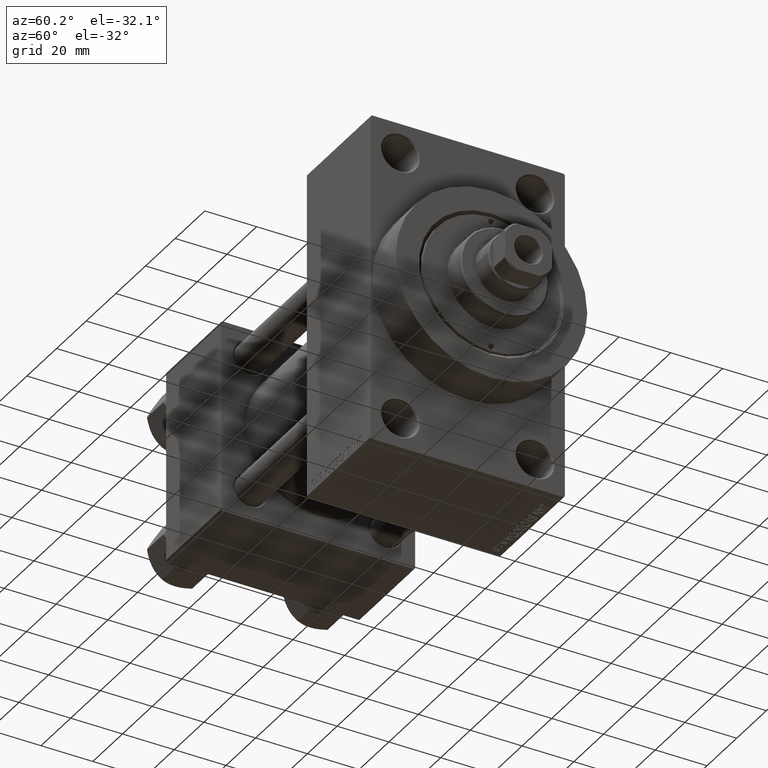
[diagram: clean part render]
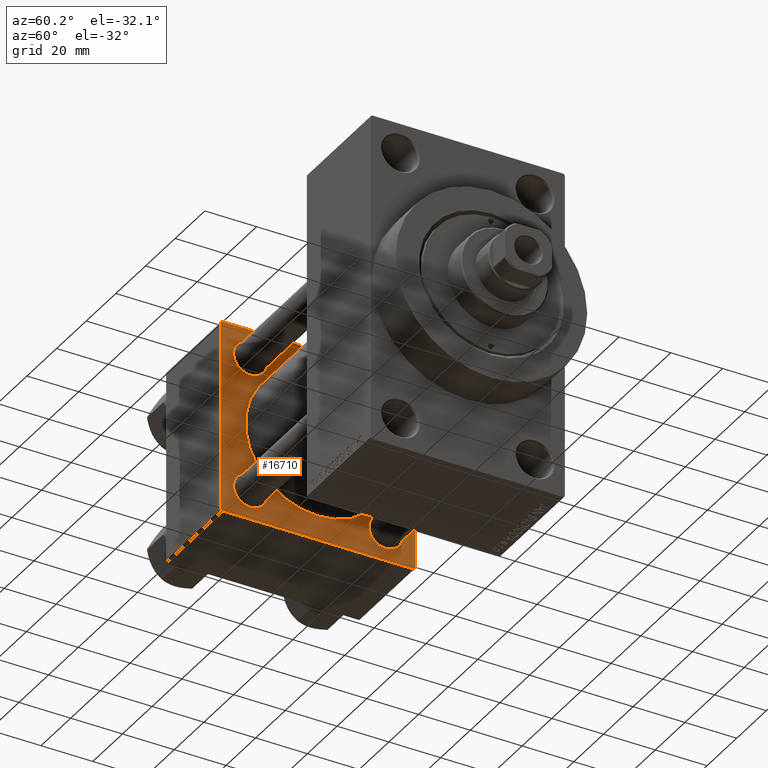
[diagram: same view with one face highlighted and labeled with its STEP entity id]
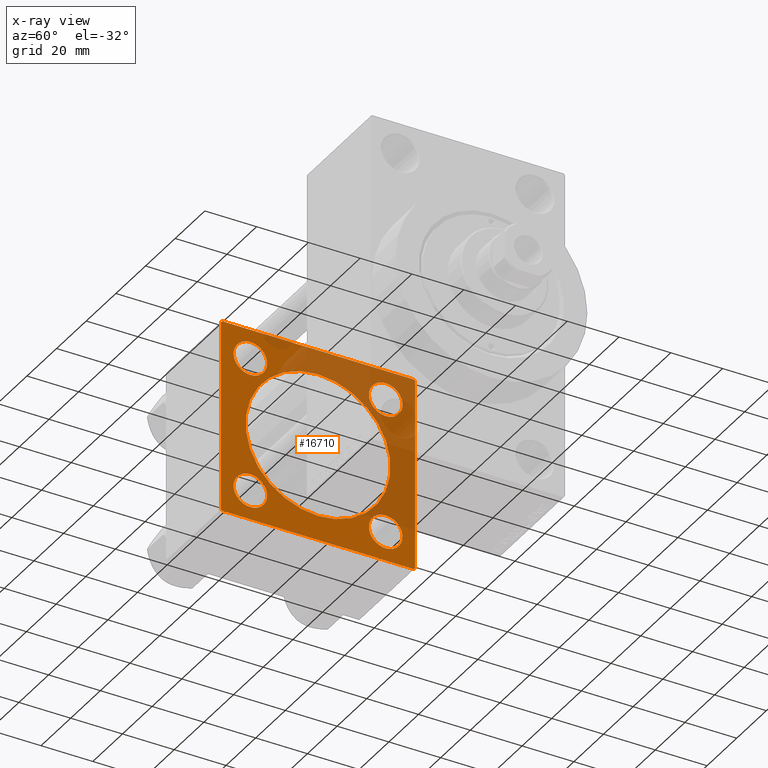
[diagram: x-ray of the same camera — body ghosted, the highlighted face saturated]
A machine part, auxiliary view. The second image highlights one B-rep face of the part: STEP entity #16710.
The next image is the same camera in x-ray: the body ghosted, the highlighted face saturated — about 41% of this face is hidden behind the body in this view.
In plain terms, the highlighted planar face has unit normal (-1, 0, 0).
Its self-contained STEP definition (entity closure, byte-faithful):
#396 = CARTESIAN_POINT ( 'NONE',  ( 37.00000000000000000, 26.14999999999999858, 19.64999999999999858 ) ) ;
#677 = LINE ( 'NONE', #45277, #38964 ) ;
#1181 = ORIENTED_EDGE ( 'NONE', *, *, #45089, .T. ) ;
#1216 = LINE ( 'NONE', #26853, #17037 ) ;
#1427 = EDGE_CURVE ( 'NONE', #25920, #32246, #7733, .T. ) ;
#2219 = DIRECTION ( 'NONE',  ( 0.000000000000000000, 0.000000000000000000, 1.000000000000000000 ) ) ;
#2360 = VERTEX_POINT ( 'NONE', #6201 ) ;
#2610 = CARTESIAN_POINT ( 'NONE',  ( 37.00000000000000000, 37.49999999999999289, -36.99999999999998579 ) ) ;
#2806 = DIRECTION ( 'NONE',  ( 0.000000000000000000, 0.000000000000000000, 1.000000000000000000 ) ) ;
#3063 = VERTEX_POINT ( 'NONE', #29992 ) ;
#3871 = ORIENTED_EDGE ( 'NONE', *, *, #36778, .T. ) ;
#4628 = PLANE ( 'NONE',  #24493 ) ;
#5595 = AXIS2_PLACEMENT_3D ( 'NONE', #16390, #31484, #2219 ) ;
#6201 = CARTESIAN_POINT ( 'NONE',  ( 37.00000000000000000, -26.14999999999999147, -19.64999999999995239 ) ) ;
#6384 = DIRECTION ( 'NONE',  ( 0.000000000000000000, 0.000000000000000000, 1.000000000000000000 ) ) ;
#6979 = LINE ( 'NONE', #21637, #36277 ) ;
#7362 = LINE ( 'NONE', #18415, #9646 ) ;
#7733 = CIRCLE ( 'NONE', #10792, 6.500000000000002665 ) ;
#7961 = DIRECTION ( 'NONE',  ( 1.000000000000000000, -0.000000000000000000, 0.000000000000000000 ) ) ;
#8034 = CARTESIAN_POINT ( 'NONE',  ( 37.00000000000000000, -37.50000000000000000, -37.00000000000003553 ) ) ;
#8092 = DIRECTION ( 'NONE',  ( 0.000000000000000000, 0.7071067811865524577, -0.7071067811865426878 ) ) ;
#8209 = FACE_BOUND ( 'NONE', #26709, .T. ) ;
#8302 = DIRECTION ( 'NONE',  ( -0.000000000000000000, -0.7071067811865474617, -0.7071067811865474617 ) ) ;
#8448 = DIRECTION ( 'NONE',  ( -1.000000000000000000, 0.000000000000000000, -0.000000000000000000 ) ) ;
#8666 = CARTESIAN_POINT ( 'NONE',  ( 37.00000000000000000, 37.49999999999999289, 37.50000000000000000 ) ) ;
#8902 = DIRECTION ( 'NONE',  ( 0.000000000000000000, 0.000000000000000000, -1.000000000000000000 ) ) ;
#9094 = CARTESIAN_POINT ( 'NONE',  ( 37.00000000000000000, 26.14999999999999858, -26.15000000000000213 ) ) ;
#9551 = LINE ( 'NONE', #2610, #30373 ) ;
#9646 = VECTOR ( 'NONE', #15269, 1000.000000000000000 ) ;
#9740 = DIRECTION ( 'NONE',  ( -1.000000000000000000, 0.000000000000000000, -0.000000000000000000 ) ) ;
#9895 = CIRCLE ( 'NONE', #17595, 6.500000000000002665 ) ;
#10034 = DIRECTION ( 'NONE',  ( -1.000000000000000000, 0.000000000000000000, -0.000000000000000000 ) ) ;
#10792 = AXIS2_PLACEMENT_3D ( 'NONE', #26250, #21314, #14108 ) ;
#10828 = CIRCLE ( 'NONE', #21556, 6.500000000000002665 ) ;
#11056 = CARTESIAN_POINT ( 'NONE',  ( 37.00000000000000000, -2.602085213965210642E-15, 28.00000000000000000 ) ) ;
#11638 = CIRCLE ( 'NONE', #17793, 6.500000000000064837 ) ;
#12466 = CIRCLE ( 'NONE', #5595, 28.00000000000000000 ) ;
#13220 = CARTESIAN_POINT ( 'NONE',  ( 37.00000000000000000, -26.14999999999999147, -26.15000000000000924 ) ) ;
#13252 = VERTEX_POINT ( 'NONE', #13624 ) ;
#13273 = DIRECTION ( 'NONE',  ( 0.000000000000000000, 0.000000000000000000, 1.000000000000000000 ) ) ;
#13392 = DIRECTION ( 'NONE',  ( -0.000000000000000000, 0.7071067811865474617, 0.7071067811865474617 ) ) ;
#13452 = ORIENTED_EDGE ( 'NONE', *, *, #32479, .T. ) ;
#13624 = CARTESIAN_POINT ( 'NONE',  ( 37.00000000000000000, 36.99999999999999289, 37.50000000000000000 ) ) ;
#13700 = CARTESIAN_POINT ( 'NONE',  ( 37.00000000000000000, 26.14999999999999858, 26.15000000000000213 ) ) ;
#14108 = DIRECTION ( 'NONE',  ( 0.000000000000000000, 0.000000000000000000, 1.000000000000000000 ) ) ;
#14606 = AXIS2_PLACEMENT_3D ( 'NONE', #31514, #35800, #13273 ) ;
#15025 = EDGE_CURVE ( 'NONE', #47101, #29013, #677, .T. ) ;
#15032 = CARTESIAN_POINT ( 'NONE',  ( 37.00000000000000000, 26.14999999999999858, 32.65000000000001279 ) ) ;
#15157 = ORIENTED_EDGE ( 'NONE', *, *, #38922, .T. ) ;
#15160 = DIRECTION ( 'NONE',  ( 0.000000000000000000, 0.000000000000000000, 1.000000000000000000 ) ) ;
#15269 = DIRECTION ( 'NONE',  ( 0.000000000000000000, -1.000000000000000000, -9.251858538542972814E-17 ) ) ;
#15666 = FACE_BOUND ( 'NONE', #29952, .T. ) ;
#15975 = CARTESIAN_POINT ( 'NONE',  ( 37.00000000000000000, 26.14999999999999858, 26.15000000000000213 ) ) ;
#16241 = CARTESIAN_POINT ( 'NONE',  ( 37.00000000000000000, -37.00000000000000711, 37.49999999999999289 ) ) ;
#16390 = CARTESIAN_POINT ( 'NONE',  ( 37.00000000000000000, -2.602085213965210642E-15, 0.000000000000000000 ) ) ;
#16471 = CARTESIAN_POINT ( 'NONE',  ( 37.00000000000000000, -26.14999999999999147, 19.64999999999994529 ) ) ;
#16710 = ADVANCED_FACE ( 'NONE', ( #26449, #41091, #8209, #15666, #22851, #37475 ), #4628, .F. ) ;
#16714 = LINE ( 'NONE', #41185, #28287 ) ;
#16821 = DIRECTION ( 'NONE',  ( -1.000000000000000000, 0.000000000000000000, -0.000000000000000000 ) ) ;
#16866 = EDGE_CURVE ( 'NONE', #30652, #32626, #9895, .T. ) ;
#17037 = VECTOR ( 'NONE', #45095, 1000.000000000000114 ) ;
#17595 = AXIS2_PLACEMENT_3D ( 'NONE', #13700, #35776, #39385 ) ;
#17618 = ORIENTED_EDGE ( 'NONE', *, *, #33552, .T. ) ;
#17793 = AXIS2_PLACEMENT_3D ( 'NONE', #24614, #9740, #2806 ) ;
#17811 = VERTEX_POINT ( 'NONE', #36955 ) ;
#18415 = CARTESIAN_POINT ( 'NONE',  ( 37.00000000000000000, 37.49999999999999289, -37.50000000000000000 ) ) ;
#18879 = EDGE_CURVE ( 'NONE', #3063, #29169, #34506, .T. ) ;
#19253 = AXIS2_PLACEMENT_3D ( 'NONE', #15975, #44522, #38040 ) ;
#19264 = CARTESIAN_POINT ( 'NONE',  ( 37.00000000000000000, 0.000000000000000000, 0.000000000000000000 ) ) ;
#19921 = EDGE_CURVE ( 'NONE', #39697, #43335, #20005, .T. ) ;
#19994 = ORIENTED_EDGE ( 'NONE', *, *, #45082, .T. ) ;
#20005 = CIRCLE ( 'NONE', #20784, 28.00000000000000000 ) ;
#20784 = AXIS2_PLACEMENT_3D ( 'NONE', #40357, #7961, #15160 ) ;
#21084 = VERTEX_POINT ( 'NONE', #25707 ) ;
#21314 = DIRECTION ( 'NONE',  ( -1.000000000000000000, 0.000000000000000000, -0.000000000000000000 ) ) ;
#21556 = AXIS2_PLACEMENT_3D ( 'NONE', #9094, #10034, #35003 ) ;
#21637 = CARTESIAN_POINT ( 'NONE',  ( 37.00000000000000000, -37.50000000000000711, 37.49999999999999289 ) ) ;
#22183 = CARTESIAN_POINT ( 'NONE',  ( 37.00000000000000000, 8.269258236473776482E-16, -28.00000000000000000 ) ) ;
#22225 = ORIENTED_EDGE ( 'NONE', *, *, #26713, .T. ) ;
#22387 = CARTESIAN_POINT ( 'NONE',  ( 37.00000000000000000, -26.14999999999999147, -26.15000000000000924 ) ) ;
#22810 = CARTESIAN_POINT ( 'NONE',  ( 37.00000000000000000, 26.14999999999999858, -19.65000000000000213 ) ) ;
#22851 = FACE_BOUND ( 'NONE', #44810, .T. ) ;
#23093 = DIRECTION ( 'NONE',  ( -0.000000000000000000, 0.000000000000000000, 1.000000000000000000 ) ) ;
#23289 = ORIENTED_EDGE ( 'NONE', *, *, #29757, .T. ) ;
#24380 = ORIENTED_EDGE ( 'NONE', *, *, #15025, .T. ) ;
#24493 = AXIS2_PLACEMENT_3D ( 'NONE', #19264, #8448, #23093 ) ;
#24614 = CARTESIAN_POINT ( 'NONE',  ( 37.00000000000000000, -26.14999999999999147, 26.15000000000000924 ) ) ;
#25553 = AXIS2_PLACEMENT_3D ( 'NONE', #22387, #32298, #6384 ) ;
#25707 = CARTESIAN_POINT ( 'NONE',  ( 37.00000000000000000, 36.99999999999997868, -37.50000000000000000 ) ) ;
#25920 = VERTEX_POINT ( 'NONE', #36399 ) ;
#26153 = DIRECTION ( 'NONE',  ( 0.000000000000000000, 9.251858538542971581E-17, -1.000000000000000000 ) ) ;
#26250 = CARTESIAN_POINT ( 'NONE',  ( 37.00000000000000000, 26.14999999999999858, -26.15000000000000213 ) ) ;
#26305 = CIRCLE ( 'NONE', #25553, 6.500000000000057732 ) ;
#26449 = FACE_BOUND ( 'NONE', #42740, .T. ) ;
#26709 = EDGE_LOOP ( 'NONE', ( #19994, #27379 ) ) ;
#26713 = EDGE_CURVE ( 'NONE', #30407, #47101, #6979, .T. ) ;
#26853 = CARTESIAN_POINT ( 'NONE',  ( 37.00000000000000000, 36.99999999999999289, 37.50000000000000000 ) ) ;
#27368 = LINE ( 'NONE', #8666, #42172 ) ;
#27379 = ORIENTED_EDGE ( 'NONE', *, *, #18879, .T. ) ;
#28287 = VECTOR ( 'NONE', #8302, 1000.000000000000114 ) ;
#28847 = ORIENTED_EDGE ( 'NONE', *, *, #32539, .F. ) ;
#28854 = EDGE_LOOP ( 'NONE', ( #28847, #13452, #34037, #1181, #46927, #17618, #22225, #24380 ) ) ;
#29013 = VERTEX_POINT ( 'NONE', #36609 ) ;
#29056 = CARTESIAN_POINT ( 'NONE',  ( 37.00000000000000000, 37.49999999999999289, 37.00000000000000000 ) ) ;
#29169 = VERTEX_POINT ( 'NONE', #16471 ) ;
#29757 = EDGE_CURVE ( 'NONE', #2360, #38038, #26305, .T. ) ;
#29952 = EDGE_LOOP ( 'NONE', ( #45467, #33626 ) ) ;
#29992 = CARTESIAN_POINT ( 'NONE',  ( 37.00000000000000000, -26.14999999999999147, 32.65000000000007674 ) ) ;
#30373 = VECTOR ( 'NONE', #13392, 1000.000000000000114 ) ;
#30407 = VERTEX_POINT ( 'NONE', #33305 ) ;
#30652 = VERTEX_POINT ( 'NONE', #396 ) ;
#31216 = DIRECTION ( 'NONE',  ( 0.000000000000000000, 0.000000000000000000, 1.000000000000000000 ) ) ;
#31484 = DIRECTION ( 'NONE',  ( 1.000000000000000000, -0.000000000000000000, 0.000000000000000000 ) ) ;
#31514 = CARTESIAN_POINT ( 'NONE',  ( 37.00000000000000000, -26.14999999999999147, 26.15000000000000924 ) ) ;
#31972 = EDGE_LOOP ( 'NONE', ( #38640, #15157 ) ) ;
#32246 = VERTEX_POINT ( 'NONE', #22810 ) ;
#32298 = DIRECTION ( 'NONE',  ( -1.000000000000000000, 0.000000000000000000, -0.000000000000000000 ) ) ;
#32479 = EDGE_CURVE ( 'NONE', #21084, #17811, #9551, .T. ) ;
#32539 = EDGE_CURVE ( 'NONE', #21084, #29013, #7362, .T. ) ;
#32626 = VERTEX_POINT ( 'NONE', #15032 ) ;
#33305 = CARTESIAN_POINT ( 'NONE',  ( 37.00000000000000000, -37.50000000000000711, 36.99999999999999289 ) ) ;
#33491 = VERTEX_POINT ( 'NONE', #16241 ) ;
#33552 = EDGE_CURVE ( 'NONE', #33491, #30407, #16714, .T. ) ;
#33626 = ORIENTED_EDGE ( 'NONE', *, *, #42154, .T. ) ;
#34037 = ORIENTED_EDGE ( 'NONE', *, *, #36673, .F. ) ;
#34506 = CIRCLE ( 'NONE', #14606, 6.500000000000064837 ) ;
#35003 = DIRECTION ( 'NONE',  ( 0.000000000000000000, 0.000000000000000000, 1.000000000000000000 ) ) ;
#35776 = DIRECTION ( 'NONE',  ( -1.000000000000000000, 0.000000000000000000, -0.000000000000000000 ) ) ;
#35800 = DIRECTION ( 'NONE',  ( -1.000000000000000000, 0.000000000000000000, -0.000000000000000000 ) ) ;
#36277 = VECTOR ( 'NONE', #26153, 1000.000000000000000 ) ;
#36399 = CARTESIAN_POINT ( 'NONE',  ( 37.00000000000000000, 26.14999999999999858, -32.65000000000000568 ) ) ;
#36600 = ORIENTED_EDGE ( 'NONE', *, *, #19921, .F. ) ;
#36609 = CARTESIAN_POINT ( 'NONE',  ( 37.00000000000000000, -37.00000000000002132, -37.50000000000000711 ) ) ;
#36673 = EDGE_CURVE ( 'NONE', #39703, #17811, #27368, .T. ) ;
#36778 = EDGE_CURVE ( 'NONE', #38038, #2360, #43704, .T. ) ;
#36955 = CARTESIAN_POINT ( 'NONE',  ( 37.00000000000000000, 37.49999999999999289, -36.99999999999998579 ) ) ;
#37475 = FACE_OUTER_BOUND ( 'NONE', #28854, .T. ) ;
#38038 = VERTEX_POINT ( 'NONE', #39715 ) ;
#38040 = DIRECTION ( 'NONE',  ( 0.000000000000000000, 0.000000000000000000, 1.000000000000000000 ) ) ;
#38396 = VECTOR ( 'NONE', #39874, 1000.000000000000000 ) ;
#38640 = ORIENTED_EDGE ( 'NONE', *, *, #1427, .T. ) ;
#38922 = EDGE_CURVE ( 'NONE', #32246, #25920, #10828, .T. ) ;
#38964 = VECTOR ( 'NONE', #8092, 1000.000000000000000 ) ;
#39385 = DIRECTION ( 'NONE',  ( 0.000000000000000000, 0.000000000000000000, 1.000000000000000000 ) ) ;
#39697 = VERTEX_POINT ( 'NONE', #11056 ) ;
#39703 = VERTEX_POINT ( 'NONE', #29056 ) ;
#39715 = CARTESIAN_POINT ( 'NONE',  ( 37.00000000000000000, -26.14999999999999147, -32.65000000000006963 ) ) ;
#39874 = DIRECTION ( 'NONE',  ( 0.000000000000000000, -1.000000000000000000, -9.251858538542971581E-17 ) ) ;
#40047 = ORIENTED_EDGE ( 'NONE', *, *, #45729, .F. ) ;
#40357 = CARTESIAN_POINT ( 'NONE',  ( 37.00000000000000000, -2.602085213965210642E-15, 0.000000000000000000 ) ) ;
#40646 = AXIS2_PLACEMENT_3D ( 'NONE', #13220, #16821, #31216 ) ;
#41091 = FACE_BOUND ( 'NONE', #31972, .T. ) ;
#41185 = CARTESIAN_POINT ( 'NONE',  ( 37.00000000000000000, -37.50000000000000711, 36.99999999999999289 ) ) ;
#42154 = EDGE_CURVE ( 'NONE', #32626, #30652, #43003, .T. ) ;
#42172 = VECTOR ( 'NONE', #8902, 1000.000000000000000 ) ;
#42637 = EDGE_CURVE ( 'NONE', #13252, #33491, #46583, .T. ) ;
#42740 = EDGE_LOOP ( 'NONE', ( #3871, #23289 ) ) ;
#43003 = CIRCLE ( 'NONE', #19253, 6.500000000000002665 ) ;
#43335 = VERTEX_POINT ( 'NONE', #22183 ) ;
#43468 = CARTESIAN_POINT ( 'NONE',  ( 37.00000000000000000, 37.49999999999999289, 37.50000000000000000 ) ) ;
#43704 = CIRCLE ( 'NONE', #40646, 6.500000000000057732 ) ;
#44522 = DIRECTION ( 'NONE',  ( -1.000000000000000000, 0.000000000000000000, -0.000000000000000000 ) ) ;
#44810 = EDGE_LOOP ( 'NONE', ( #36600, #40047 ) ) ;
#45082 = EDGE_CURVE ( 'NONE', #29169, #3063, #11638, .T. ) ;
#45089 = EDGE_CURVE ( 'NONE', #39703, #13252, #1216, .T. ) ;
#45095 = DIRECTION ( 'NONE',  ( 0.000000000000000000, -0.7071067811865474617, 0.7071067811865474617 ) ) ;
#45277 = CARTESIAN_POINT ( 'NONE',  ( 37.00000000000000000, -37.00000000000002132, -37.50000000000000711 ) ) ;
#45467 = ORIENTED_EDGE ( 'NONE', *, *, #16866, .T. ) ;
#45729 = EDGE_CURVE ( 'NONE', #43335, #39697, #12466, .T. ) ;
#46583 = LINE ( 'NONE', #43468, #38396 ) ;
#46927 = ORIENTED_EDGE ( 'NONE', *, *, #42637, .T. ) ;
#47101 = VERTEX_POINT ( 'NONE', #8034 ) ;